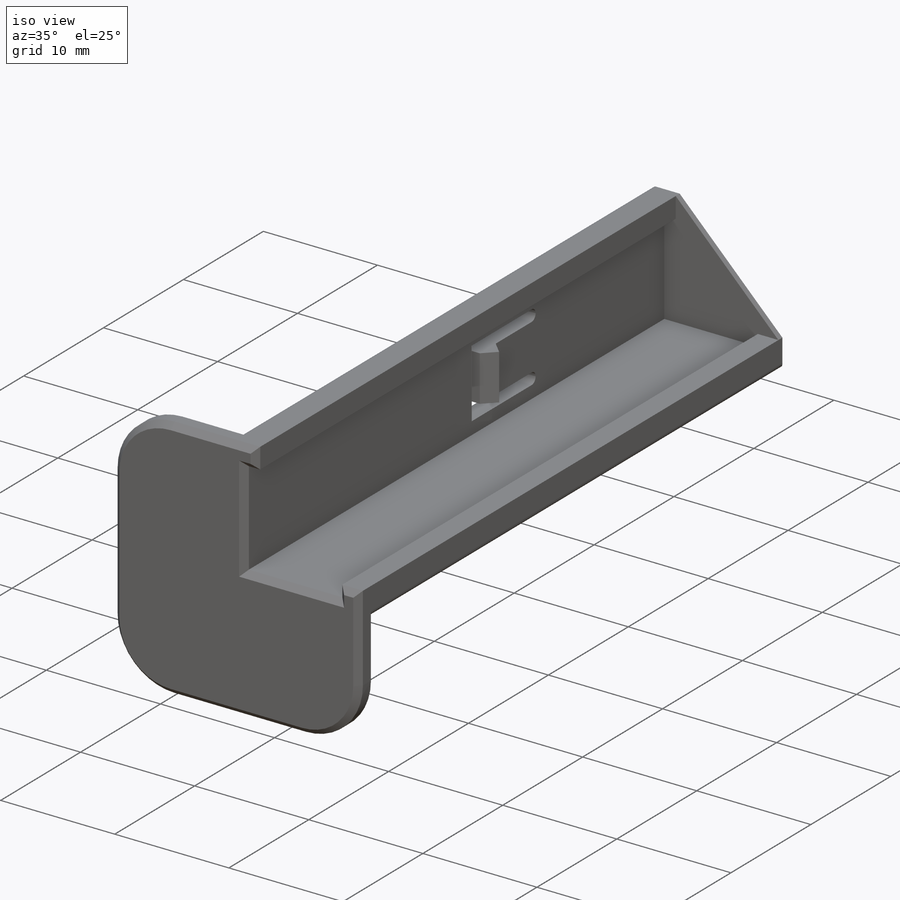
[diagram: iso view]
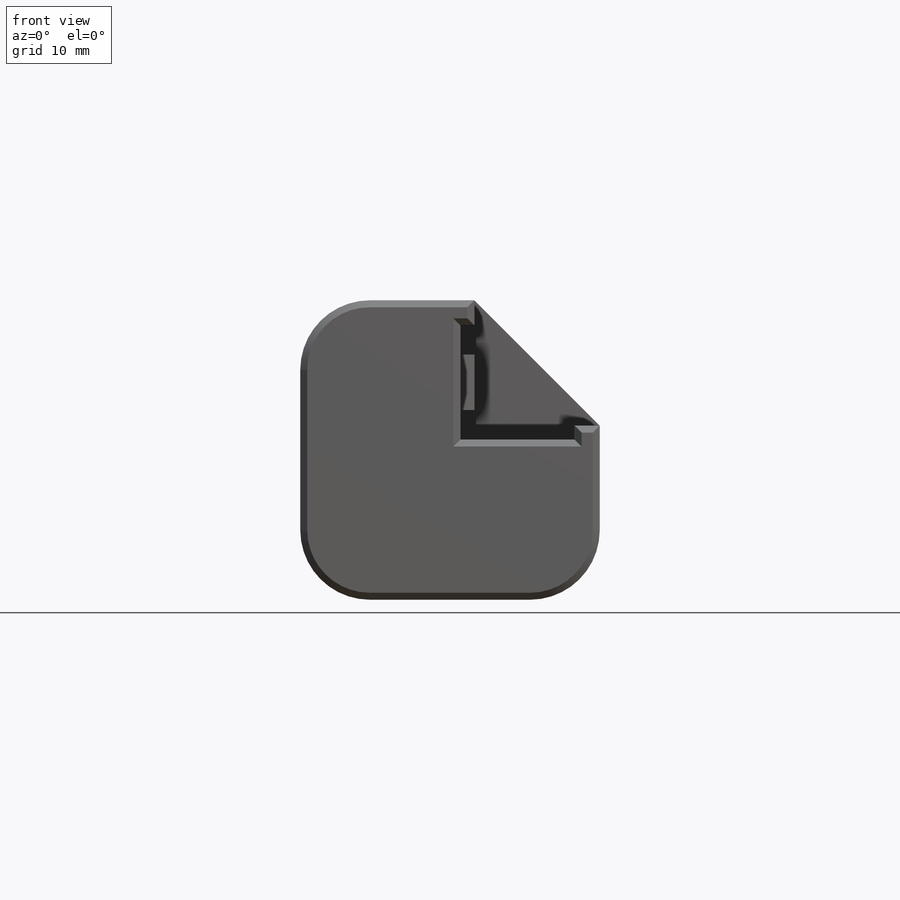
[diagram: front view]
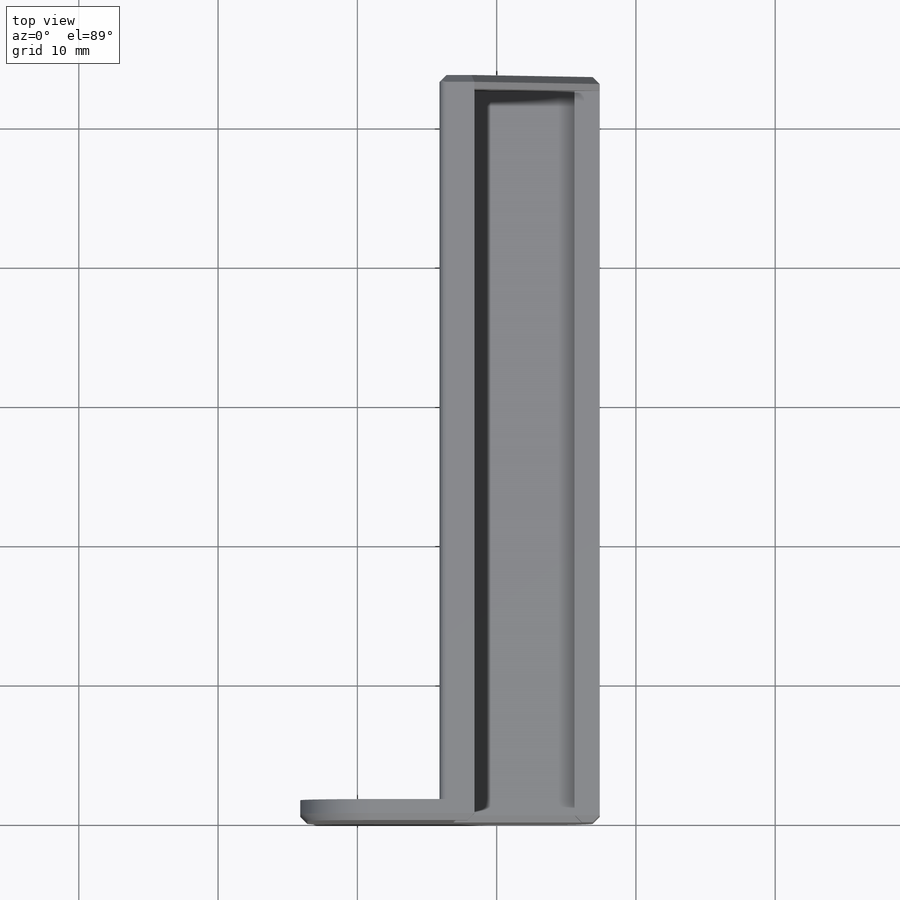
[diagram: top view]
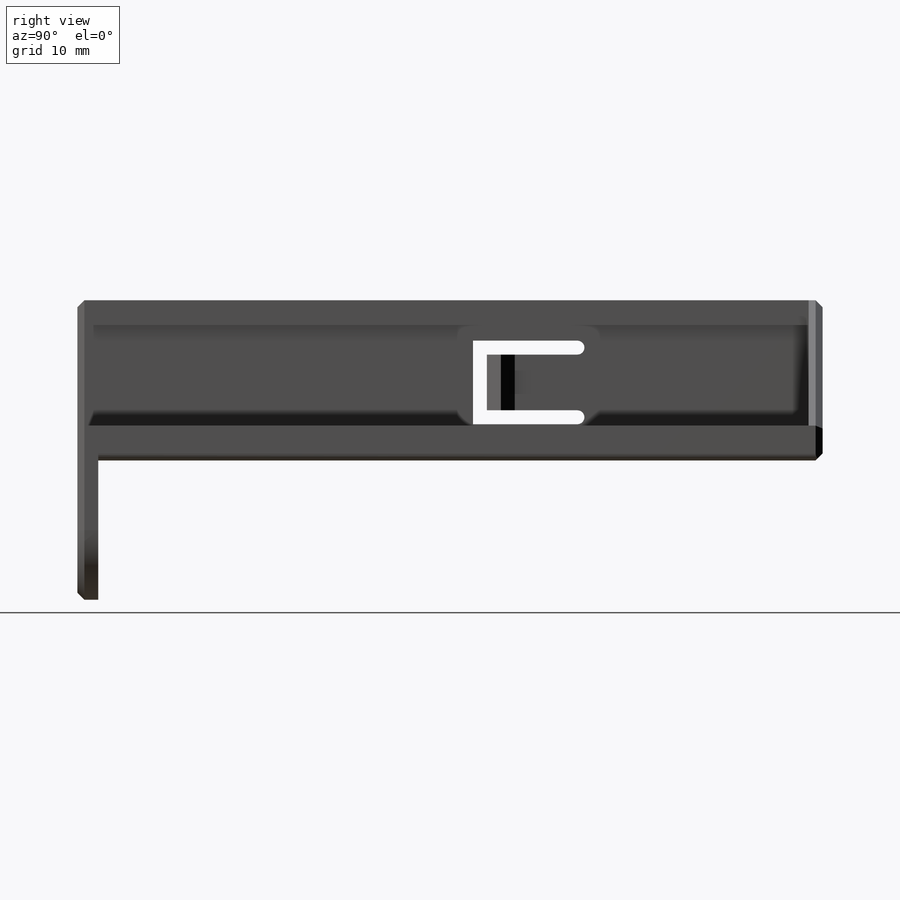
[diagram: right view]
SOLIDWORKS PART (.sldprt)
format: sldprt  version: not decoded by parser v0  size: 327,680 bytes
history: native  units: mm
features: sketch x5, extrude x4, fillet x3, chamfer x2, material x1, cut_extrude x1 (+13 scaffold rows collapsed)
feature tree (29):
  scaffold x13  (default folders/planes/origin — collapsed)
  material  "PE High Density"
  sketch  "Sketch1"  dims[D1=0.1mm D2=0.1mm D3=0.1mm D4=0.1mm D5=0.1mm D6=0.1mm D7=0.1mm D8=0.1mm D9=1.5mm D10=1.5mm]
  extrude  "Boss-Extrude1"  Depth=52.5mm
  sketch  "Sketch2"  dims[D1=10.0mm D2=10.0mm]
  extrude  "Boss-Extrude2"  Depth=1.5mm
  sketch  "Sketch4"  dims[D1=28.4mm D2=1.0mm D3=1.0mm D4=1.0mm D5=4.0mm D6=7.0mm]
  cut_extrude  "Cut-Extrude1"  [1 undecoded]
  sketch  "Sketch5"  dims[D1=4.0mm D2=2.0mm D3=0.0mm]
  extrude  "Boss-Extrude3"  Depth=1mm
  fillet  "Fillet1"  Radius=5mm
  sketch  "Sketch6"
  extrude  "Boss-Extrude4"  Depth=1mm
  chamfer  "Chamfer3"  Distance=0.5mm Angle=45deg
  chamfer  "Chamfer4"  Distance=1mm Angle=45deg
  fillet  "Fillet3"  Radius=0.5mm
  fillet  "Fillet4"  Radius=0.5mm
decode coverage: 13 of 15 modeling features carry decoded parameters
note: 1 parameter value undecoded
note: suppression state not decoded; provenance and decode notes live in map.json
